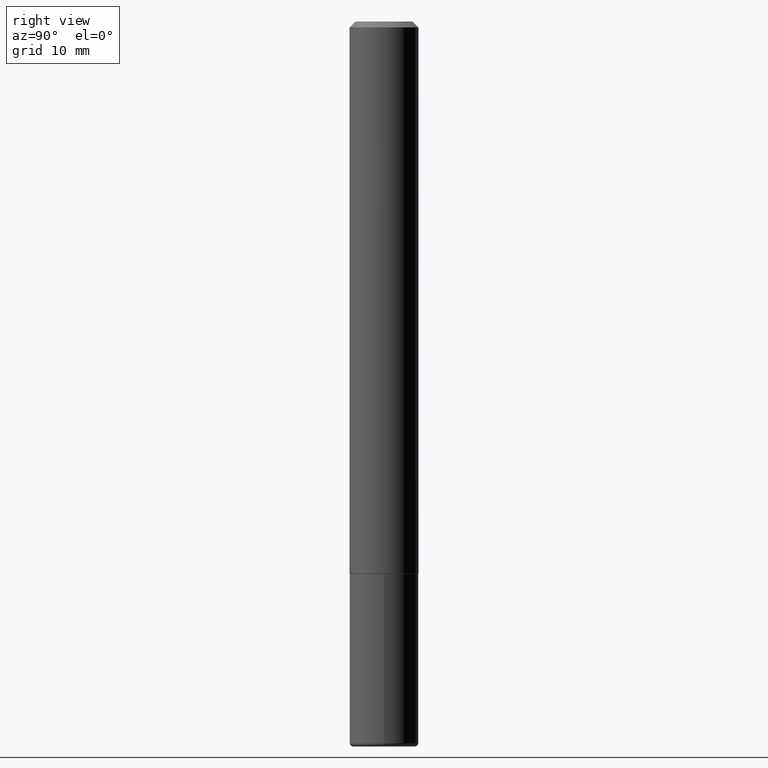
[diagram: clean part render]
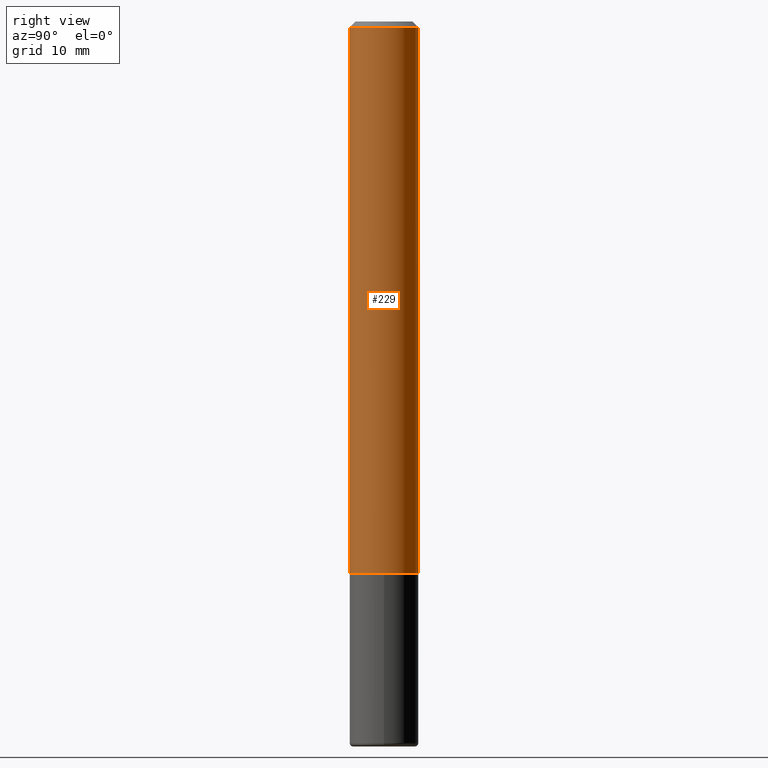
[diagram: same view with one face highlighted and labeled with its STEP entity id]
A machine part, right view. The second image highlights one B-rep face of the part: STEP entity #229.
In plain terms, the highlighted cylindrical surface (edge-blend (fillet) strip) has radius 2.9997 mm, axis along (-0, 0, 1).
Its self-contained STEP definition (entity closure, byte-faithful):
#34 = EDGE_CURVE ( 'NONE', #101, #363, #347, .T. ) ;
#40 = CARTESIAN_POINT ( 'NONE',  ( 0.000000000000000000, 0.000000000000000000, 0.000000000000000000 ) ) ;
#65 = CARTESIAN_POINT ( 'NONE',  ( 4.608738672090694819E-29, -6.608707526277601759E-15, -1.888700000000000268 ) ) ;
#69 = FACE_OUTER_BOUND ( 'NONE', #395, .T. ) ;
#70 = ORIENTED_EDGE ( 'NONE', *, *, #316, .F. ) ;
#77 = DIRECTION ( 'NONE',  ( -2.440164489908770346E-29, 3.499077421653835966E-15, 1.000000000000000000 ) ) ;
#81 = DIRECTION ( 'NONE',  ( -6.982962677686265133E-15, -1.000000000000000000, 4.626330217890359081E-15 ) ) ;
#82 = CARTESIAN_POINT ( 'NONE',  ( 8.246878922347486570E-16, 0.1180999999999999689, -0.02000000000000047920 ) ) ;
#83 = CIRCLE ( 'NONE', #221, 0.1181000000000002603 ) ;
#100 = CARTESIAN_POINT ( 'NONE',  ( -8.102248135368175393E-16, -0.1181000000000001077, -0.01999999999999965000 ) ) ;
#101 = VERTEX_POINT ( 'NONE', #413 ) ;
#106 = DIRECTION ( 'NONE',  ( -2.440164489908770066E-29, 3.499077421653835966E-15, 1.000000000000000000 ) ) ;
#122 = EDGE_CURVE ( 'NONE', #137, #101, #83, .T. ) ;
#128 = VECTOR ( 'NONE', #77, 39.37007874015748143 ) ;
#137 = VERTEX_POINT ( 'NONE', #303 ) ;
#143 = CARTESIAN_POINT ( 'NONE',  ( -8.246878922347489529E-16, -0.1181000000000001354, 4.132410434973184795E-16 ) ) ;
#159 = LINE ( 'NONE', #143, #128 ) ;
#166 = VECTOR ( 'NONE', #369, 39.37007874015748143 ) ;
#184 = ORIENTED_EDGE ( 'NONE', *, *, #219, .F. ) ;
#201 = CARTESIAN_POINT ( 'NONE',  ( 4.880328979817555756E-31, -6.998154843307694069E-17, -0.02000000000000006287 ) ) ;
#219 = EDGE_CURVE ( 'NONE', #137, #273, #159, .T. ) ;
#221 = AXIS2_PLACEMENT_3D ( 'NONE', #65, #370, #81 ) ;
#228 = DIRECTION ( 'NONE',  ( -2.440164489908770066E-29, 3.499077421653835966E-15, 1.000000000000000000 ) ) ;
#229 = ADVANCED_FACE ( 'NONE', ( #69 ), #231, .T. ) ;
#231 = CYLINDRICAL_SURFACE ( 'NONE', #290, 0.1181000000000001354 ) ;
#238 = CARTESIAN_POINT ( 'NONE',  ( 8.391509709326791832E-16, 0.1181000000000001354, -4.132410434973184795E-16 ) ) ;
#273 = VERTEX_POINT ( 'NONE', #100 ) ;
#290 = AXIS2_PLACEMENT_3D ( 'NONE', #40, #228, #302 ) ;
#298 = ORIENTED_EDGE ( 'NONE', *, *, #122, .T. ) ;
#302 = DIRECTION ( 'NONE',  ( -6.982962677686265922E-15, -1.000000000000000000, 3.499077421653835966E-15 ) ) ;
#303 = CARTESIAN_POINT ( 'NONE',  ( -8.246878922347036920E-16, -0.1181000000000068662, -1.888699999999999823 ) ) ;
#316 = EDGE_CURVE ( 'NONE', #273, #363, #383, .T. ) ;
#327 = AXIS2_PLACEMENT_3D ( 'NONE', #201, #106, #333 ) ;
#333 = DIRECTION ( 'NONE',  ( -6.982962677686265922E-15, -1.000000000000000000, 3.505890868245044514E-15 ) ) ;
#334 = ORIENTED_EDGE ( 'NONE', *, *, #34, .T. ) ;
#347 = LINE ( 'NONE', #238, #166 ) ;
#363 = VERTEX_POINT ( 'NONE', #82 ) ;
#369 = DIRECTION ( 'NONE',  ( -2.440164489908770346E-29, 3.499077421653835966E-15, 1.000000000000000000 ) ) ;
#370 = DIRECTION ( 'NONE',  ( -2.440164489908770066E-29, 3.499077421653835966E-15, 1.000000000000000000 ) ) ;
#383 = CIRCLE ( 'NONE', #327, 0.1181000000000000383 ) ;
#395 = EDGE_LOOP ( 'NONE', ( #298, #334, #70, #184 ) ) ;
#413 = CARTESIAN_POINT ( 'NONE',  ( 8.391509709327030462E-16, 0.1180999999999936684, -1.888700000000000712 ) ) ;